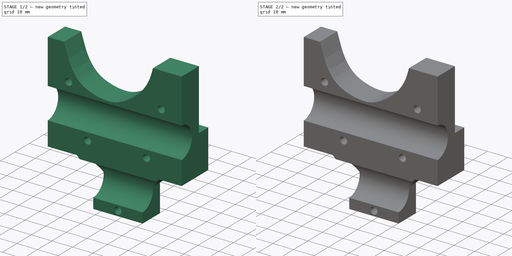
[diagram: build sequence overview — one tinted view per stage of 2, left to right]
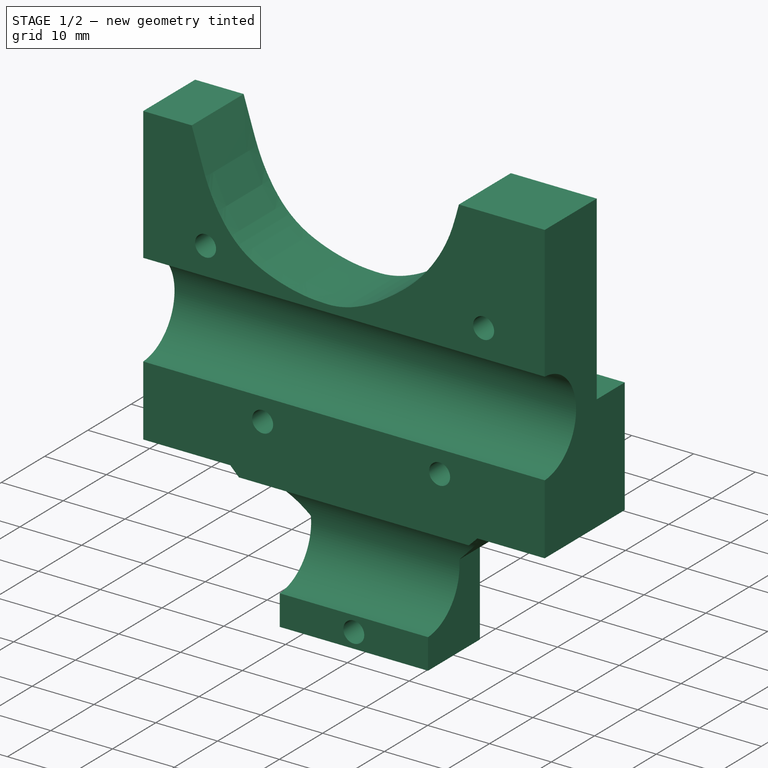
[diagram: stage 1 of 2 — iso view after this stage's code; geometry added in this stage tinted green]
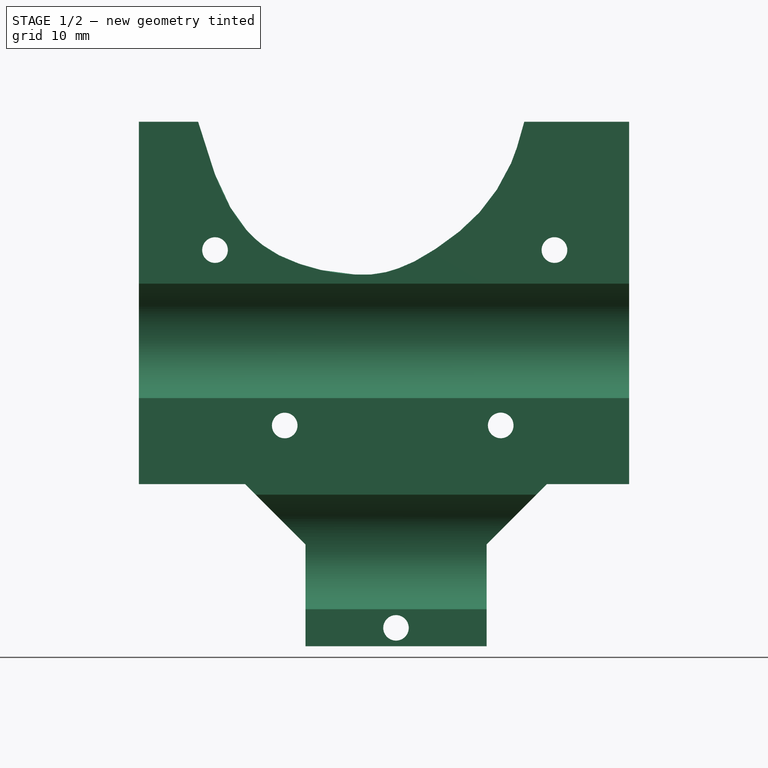
[diagram: stage 1 of 2 — front view after this stage's code; geometry added in this stage tinted green]
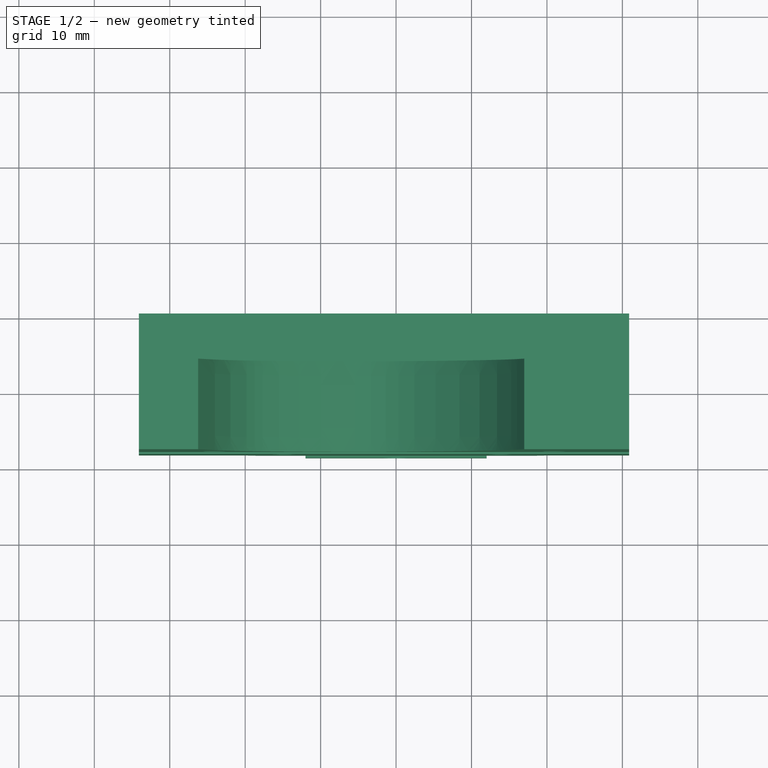
[diagram: stage 1 of 2 — top view after this stage's code; geometry added in this stage tinted green]
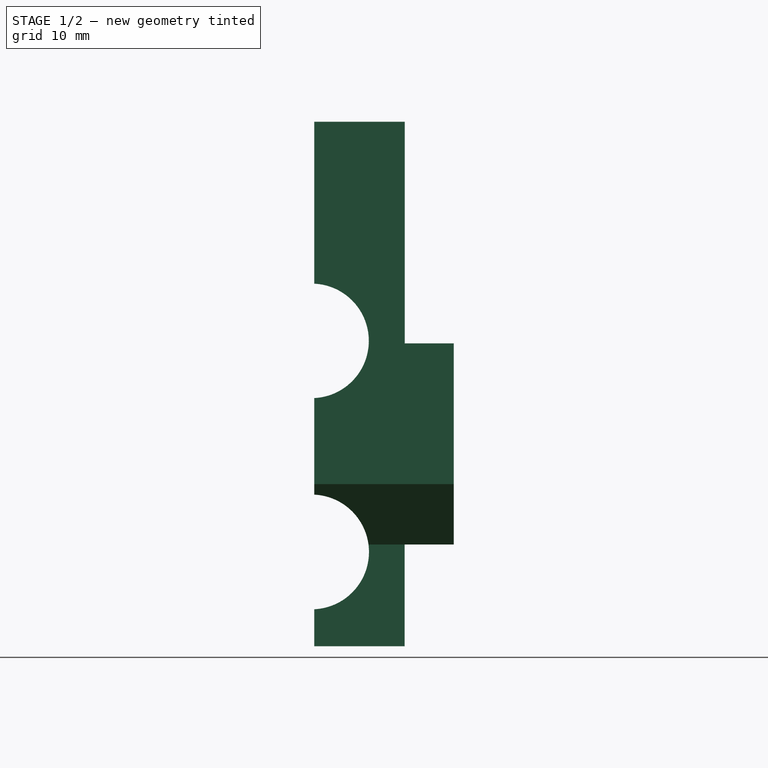
[diagram: stage 1 of 2 — right view after this stage's code; geometry added in this stage tinted green]
FCSTD DOCUMENT  (FreeCAD 0.21R33668 +26 (Git))
Label: X_carriage_Rear
License: All rights reserved
LicenseURL: https://en.wikipedia.org/wiki/All_rights_reserved
objects: Sketcher::SketchObject×4, PartDesign::Pocket×2, PartDesign::Pad×1, PartDesign::Hole×1, PartDesign::Body×1
note: 13 computed .brp shape members not serialized (recipe doc carries the construction recipe); baked Part::Feature solids carry a one-line shape summary decoded from their .brp

FEATURE [Sketcher::SketchObject] Sketch
  FullyConstrained = false
  Placement = pos=(0,0,0) rot=(1,0,0;1.5708rad)
  sketch-geometry (59):
    g0: LineSegment StartX=-26.2415 StartY=121.015 StartZ=0 EndX=-34.0909 EndY=121.015 EndZ=0
    g1: LineSegment StartX=-34.0909 StartY=121.015 StartZ=0 EndX=-34.0909 EndY=72.9731 EndZ=0
    g2: LineSegment StartX=-34.0909 StartY=72.9731 StartZ=0 EndX=-20 EndY=72.9731 EndZ=0
    g3: LineSegment StartX=-20 StartY=72.9731 StartZ=0 EndX=-12.0001 EndY=64.9732 EndZ=0
    g4: LineSegment StartX=-12.0001 StartY=64.9732 StartZ=0 EndX=-12.0001 EndY=51.4725 EndZ=0
    g5: LineSegment StartX=-12.0001 StartY=51.4725 StartZ=0 EndX=12 EndY=51.4725 EndZ=0
    g6: LineSegment StartX=12 StartY=51.4725 StartZ=0 EndX=12 EndY=64.9732 EndZ=0
    g7: LineSegment StartX=12 StartY=64.9732 StartZ=0 EndX=20 EndY=72.9732 EndZ=0
    g8: LineSegment StartX=20 StartY=72.9732 StartZ=0 EndX=30.8943 EndY=72.9732 EndZ=0
    g9: LineSegment StartX=30.8943 StartY=121.006 StartZ=0 EndX=30.8943 EndY=72.9732 EndZ=0
    g10: LineSegment StartX=30.8943 StartY=121.006 StartZ=0 EndX=16.999 EndY=121.006 EndZ=0
    g11-g32: Circle x22 (B-spline internal-alignment scaffolding for g33; pole/knot coordinates omitted)
    g33: BSplineCurve PolesCount=22 KnotsCount=20 Degree=3 IsPeriodic=0
    g34-g53: GeomPoint x20 (B-spline internal-alignment scaffolding for g33; pole/knot coordinates omitted)
    g54: Circle CenterX=-24.001 CenterY=103.999 CenterZ=0 NormalX=0 NormalY=0 NormalZ=1 AngleXU=0 Radius=1.70057
    g55: Circle CenterX=-14.7598 CenterY=80.7426 CenterZ=0 NormalX=0 NormalY=0 NormalZ=1 AngleXU=0 Radius=1.69619
    g56: Circle CenterX=20.9977 CenterY=104.001 CenterZ=0 NormalX=0 NormalY=0 NormalZ=1 AngleXU=0 Radius=1.70239
    g57: Circle CenterX=13.8758 CenterY=80.752 CenterZ=0 NormalX=0 NormalY=0 NormalZ=1 AngleXU=0 Radius=1.69766
    g58: Circle CenterX=-0.007881 CenterY=53.9168 CenterZ=0 NormalX=0 NormalY=0 NormalZ=1 AngleXU=0 Radius=1.68944
  constraints (26):
    c: Horizontal(g0)
    c: Coincident(g0,g1)
    c: Vertical(g1)
    c: Coincident(g1,g2)
    c: Horizontal(g2)
    c: Coincident(g2,g3)
    c: Coincident(g3,g4)
    c: Vertical(g4)
    c: Coincident(g4,g5)
    c: Horizontal(g5)
    c: Coincident(g5,g6)
    c: Vertical(g6)
    c: Horizontal(g6,g3)
    c: Coincident(g7,g6)
    c: Coincident(g8,g7)
    c: Horizontal(g8)
    c: Coincident(g9,g8)
    c: Vertical(g9)
    c: Coincident(g10,g9)
    c: Horizontal(g10)
    c: Weight(g11) = 1
    c: Coincident(g33,g0)
    c: Equal(g11, g12-g32) x21
    c: Coincident(g33,g10)
    c: InternalAlignment(g11-g32 -> g33) x22
    c: InternalAlignment(g34-g53 -> g33) x20
FEATURE [PartDesign::Pad] Pad
  Direction = (0,-1,0)
  Length = 18.5
  Length2 = 10
  Placement = pos=(0,0,0) rot=(1,0,0;1.5708rad)
  Profile = -> Sketch
  ReferenceAxis = -> Sketch [N_Axis]
  Type = 0
FEATURE [Sketcher::SketchObject] Sketch001
  AttachmentOffset = pos=(0,0,-37) rot=(0,0,1;0rad)
  FullyConstrained = false
  MapMode = 5
  Placement = pos=(-37,8.2e-15,-8.2e-15) rot=(0.57735,0.57735,0.57735;2.0944rad)
  Support = -> [YZ_Plane]
  sketch-geometry (11):
    g0: Circle CenterX=-18.853 CenterY=91.9617 CenterZ=0 NormalX=0 NormalY=0 NormalZ=1 AngleXU=0 Radius=7.59037
    g1: Circle CenterX=-18.8451 CenterY=63.9782 CenterZ=0 NormalX=0 NormalY=0 NormalZ=1 AngleXU=0 Radius=7.60375
    g2: LineSegment StartX=-6.51958 StartY=51.2884 StartZ=0 EndX=-6.51958 EndY=64.9679 EndZ=0
    g3: LineSegment StartX=0.037609 StartY=73.1018 StartZ=0 EndX=0.037609 EndY=91.6327 EndZ=0
    g4: LineSegment StartX=0.037609 StartY=91.6327 StartZ=0 EndX=-6.49143 EndY=91.6327 EndZ=0
    g5: LineSegment StartX=-6.49143 StartY=91.6327 StartZ=0 EndX=-6.49143 EndY=124.613 EndZ=0
    g6: LineSegment StartX=-6.49143 StartY=124.613 StartZ=0 EndX=19.66 EndY=122.88 EndZ=0
    g7: LineSegment StartX=19.66 StartY=122.88 StartZ=0 EndX=13.0663 EndY=46.5596 EndZ=0
    g8: LineSegment StartX=13.0663 StartY=46.5596 StartZ=0 EndX=-6.51958 EndY=51.2884 EndZ=0
    g9: LineSegment StartX=0.037609 StartY=73.1018 StartZ=0 EndX=0.037609 EndY=64.9679 EndZ=0
    g10: LineSegment StartX=0.037609 StartY=64.9679 StartZ=0 EndX=-6.51958 EndY=64.9679 EndZ=0
  constraints (15):
    c: Vertical(g2)
    c: Vertical(g3)
    c: Coincident(g3,g4)
    c: Horizontal(g4)
    c: Coincident(g4,g5)
    c: Vertical(g5)
    c: Coincident(g5,g6)
    c: Coincident(g6,g7)
    c: Coincident(g7,g8)
    c: Coincident(g8,g2)
    c: Coincident(g9,g3)
    c: Vertical(g9)
    c: Coincident(g10,g9)
    c: Coincident(g10,g2)
    c: Horizontal(g10)
FEATURE [PartDesign::Pocket] Pocket
  BaseFeature = -> Pad
  Direction = (-1,2e-16,-3e-16)
  Length = 97
  Length2 = 5
  Placement = pos=(0,0,0) rot=(1,0,0;1.5708rad)
  Profile = -> Sketch001
  ReferenceAxis = -> Sketch001 [N_Axis]
  Reversed = true
  Type = 0
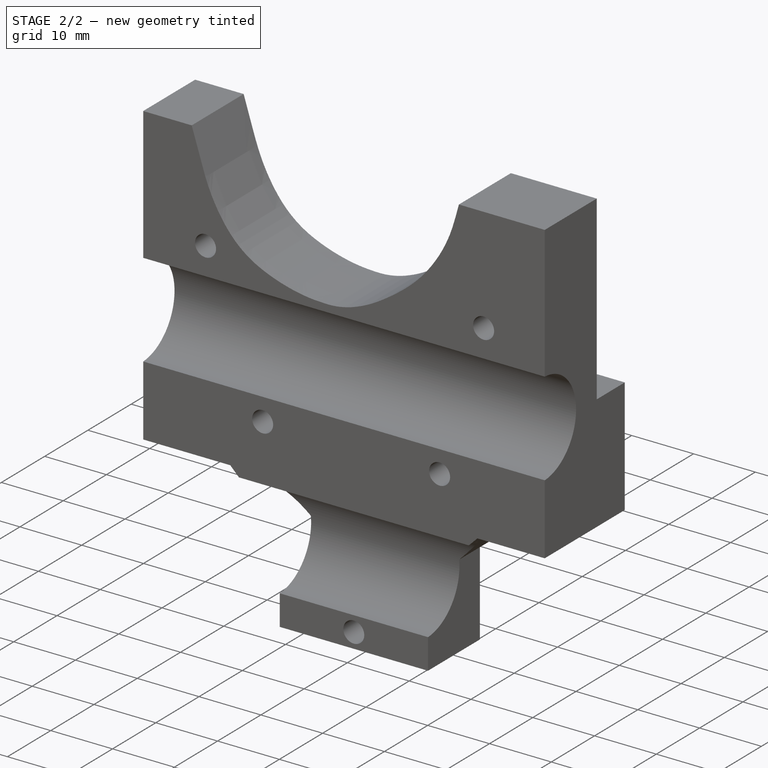
[diagram: stage 2 of 2 — iso view after this stage's code; geometry added in this stage tinted green]
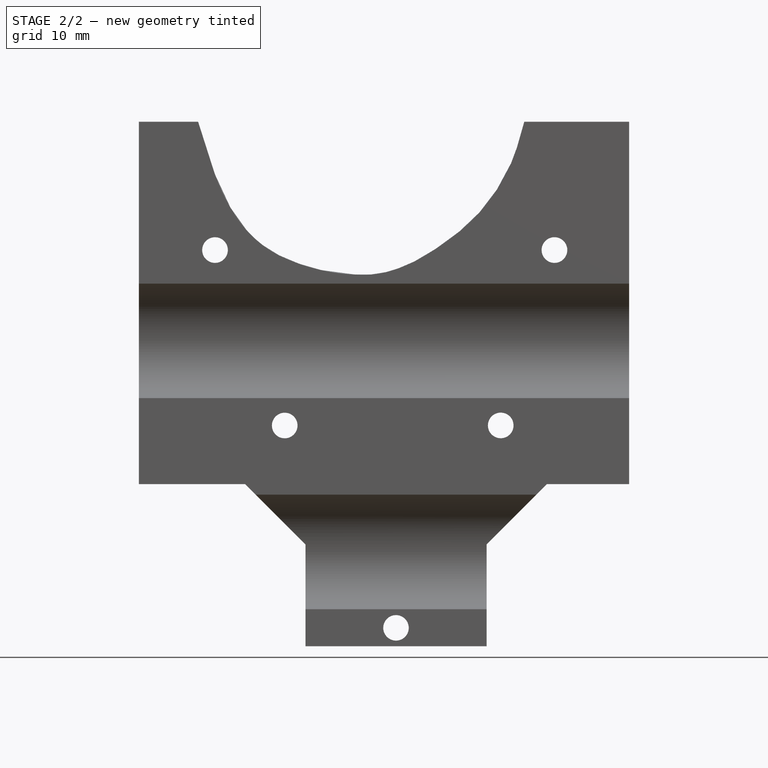
[diagram: stage 2 of 2 — front view after this stage's code; geometry added in this stage tinted green]
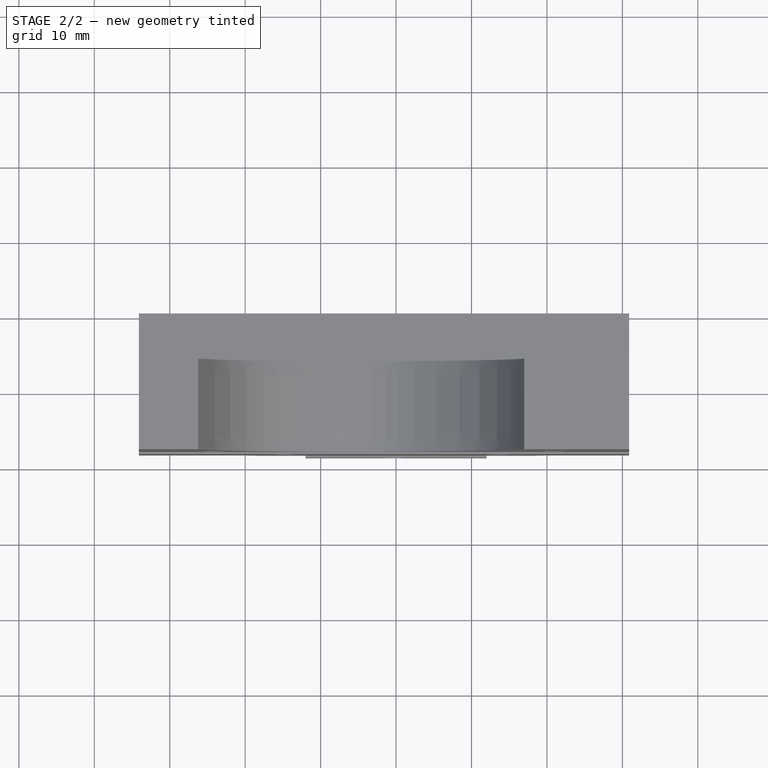
[diagram: stage 2 of 2 — top view after this stage's code; geometry added in this stage tinted green]
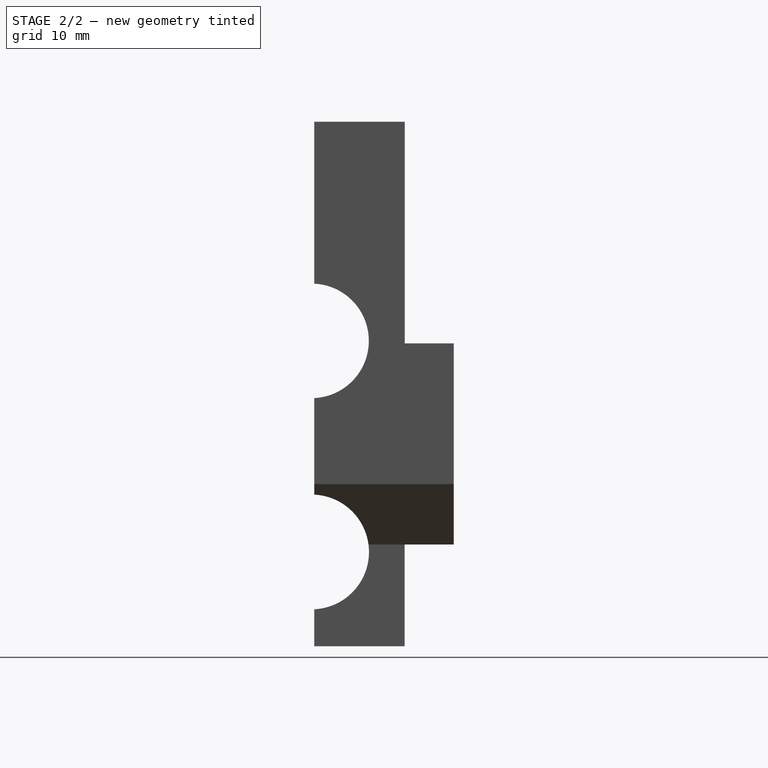
[diagram: stage 2 of 2 — right view after this stage's code; geometry added in this stage tinted green]
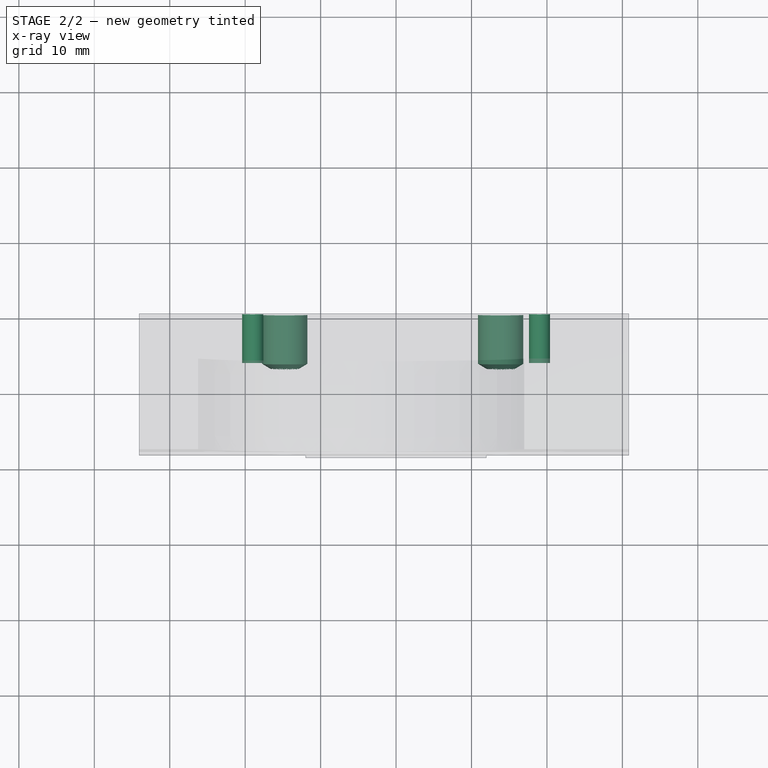
[diagram: stage 2 of 2 — x-ray composite at the top view; earlier geometry ghosted, this stage's added geometry solid]
FEATURE [Sketcher::SketchObject] Sketch002
  FullyConstrained = false
  MapMode = 5
  Placement = pos=(0,0,0) rot=(1,0,0;1.5708rad)
  Support = -> [XZ_Plane]
  sketch-geometry (2):
    g0: Circle CenterX=-14.7609 CenterY=80.7403 CenterZ=0 NormalX=0 NormalY=0 NormalZ=1 AngleXU=0 Radius=1.68941
    g1: Circle CenterX=13.8687 CenterY=80.7434 CenterZ=0 NormalX=0 NormalY=0 NormalZ=1 AngleXU=0 Radius=1.6961
FEATURE [Sketcher::SketchObject] Sketch003
  FullyConstrained = false
  MapMode = 5
  Placement = pos=(0,0,0) rot=(1,0,0;1.5708rad)
  Support = -> [XZ_Plane]
  sketch-geometry (4):
    g0: Circle CenterX=14.99 CenterY=73.452 CenterZ=0 NormalX=0 NormalY=0 NormalZ=1 AngleXU=0 Radius=1.41178
    g1: Circle CenterX=-14.9948 CenterY=73.4547 CenterZ=0 NormalX=0 NormalY=0 NormalZ=1 AngleXU=0 Radius=1.40177
    g2: Circle CenterX=-19.0039 CenterY=86.9954 CenterZ=0 NormalX=0 NormalY=0 NormalZ=1 AngleXU=0 Radius=1.39893
    g3: Circle CenterX=19.0007 CenterY=87.0034 CenterZ=0 NormalX=0 NormalY=0 NormalZ=1 AngleXU=0 Radius=1.40165
FEATURE [PartDesign::Hole] Hole
  BaseFeature = -> Pocket
  CustomThreadClearance = 0
  Depth = 6.5
  DepthType = 0
  Diameter = 6
  DrillForDepth = false
  DrillPoint = 1
  DrillPointAngle = 118
  HoleCutCountersinkAngle = 90
  HoleCutCustomValues = false
  HoleCutDepth = 0
  HoleCutDiameter = 6.1
  HoleCutType = 0
  ModelThread = false
  Placement = pos=(0,0,0) rot=(1,0,0;1.5708rad)
  Profile = -> Sketch002
  Reversed = true
  Tapered = false
  TaperedAngle = 90
  ThreadClass = 0
  ThreadDepth = 6.5
  ThreadDepthType = 0
  ThreadDirection = 0
  ThreadFit = 0
  ThreadSize = 0
  ThreadType = 0
  Threaded = false
  UseCustomThreadClearance = false
FEATURE [PartDesign::Pocket] Pocket001
  BaseFeature = -> Hole
  Direction = (0,1,-2e-16)
  Length = 6.5
  Length2 = 5
  Placement = pos=(0,0,0) rot=(1,0,0;1.5708rad)
  Profile = -> Sketch003
  ReferenceAxis = -> Sketch003 [N_Axis]
  Reversed = true
  Type = 0
FEATURE [PartDesign::Body] Body
  Group = -> [Sketch,Pad,Sketch001,Pocket,Sketch002,Hole,Sketch003,Pocket001]
  Origin = -> Origin
  Tip = -> Pocket001
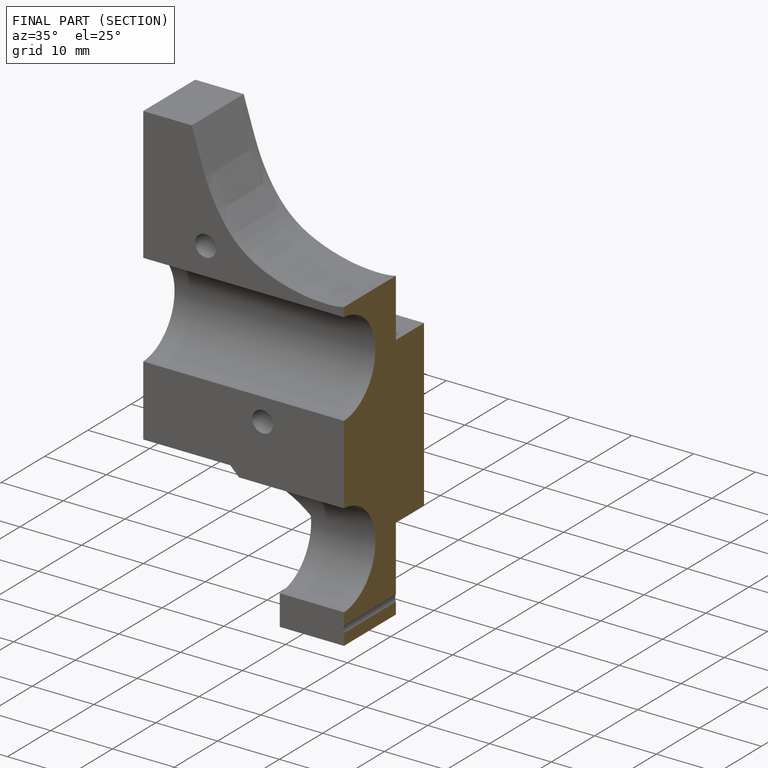
[diagram: finished part — half-section view (interior)]
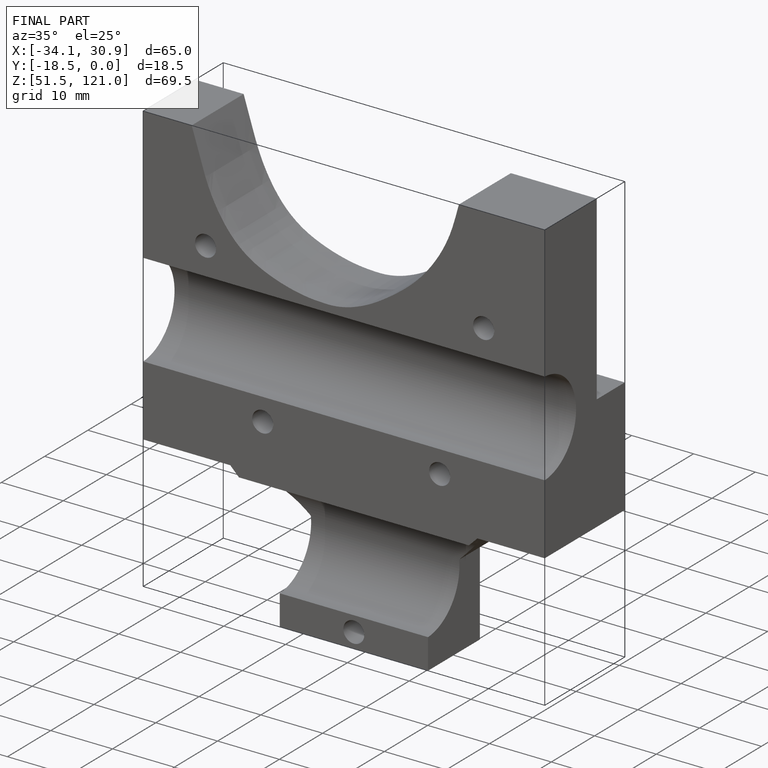
[diagram: finished part — iso view with bounding-box wireframe]
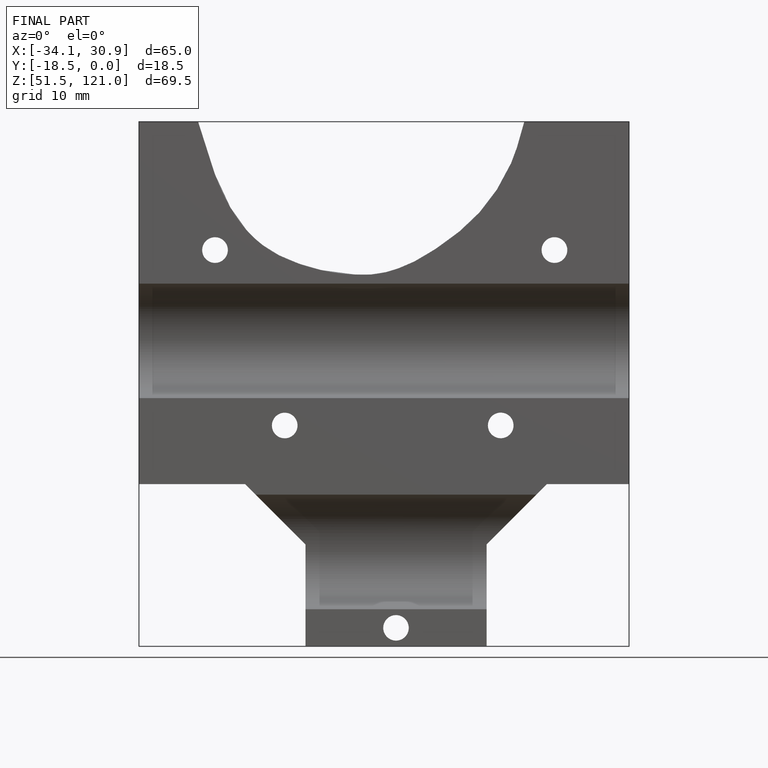
[diagram: finished part — front view with bounding-box wireframe]
